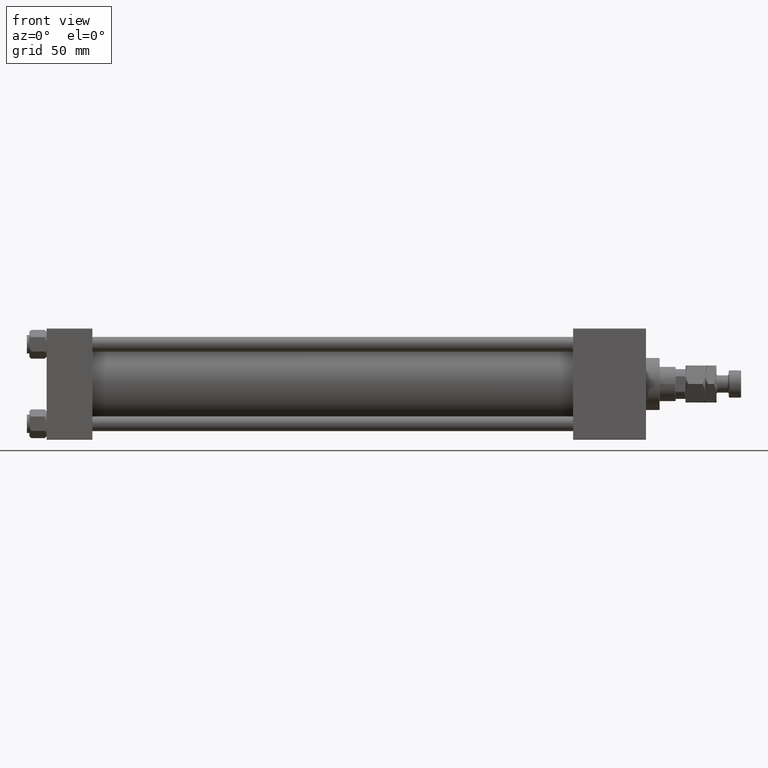
[diagram: clean part render]
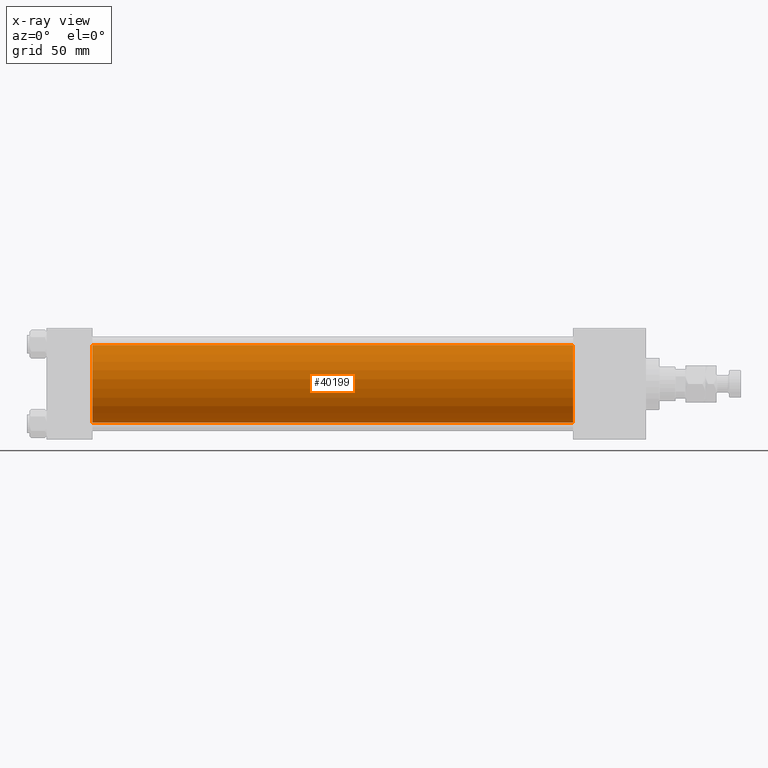
[diagram: x-ray — body ghosted, one internal face saturated and labeled with its STEP entity id]
A machine part, front view, then the same camera in x-ray: the body is ghosted and one INTERNAL B-rep face — a face not visible from any outside direction — is saturated and labeled: STEP entity #40199.
In plain terms, the highlighted cylindrical surface (partial cylindrical patch) has radius 31.5 mm, axis along (-1, -0, -0).
Its self-contained STEP definition (entity closure, byte-faithful):
#2226 = FACE_OUTER_BOUND ( 'NONE', #11155, .T. ) ;
#3051 = EDGE_CURVE ( 'NONE', #48441, #43650, #46889, .T. ) ;
#3244 = VECTOR ( 'NONE', #34979, 1000.000000000000000 ) ;
#4321 = EDGE_CURVE ( 'NONE', #36551, #48441, #27331, .T. ) ;
#7565 = AXIS2_PLACEMENT_3D ( 'NONE', #9440, #9936, #25482 ) ;
#9440 = CARTESIAN_POINT ( 'NONE',  ( 426.0000000000000000, -2.602085213965210642E-15, 0.000000000000000000 ) ) ;
#9936 = DIRECTION ( 'NONE',  ( 1.000000000000000000, 0.000000000000000000, 0.000000000000000000 ) ) ;
#11155 = EDGE_LOOP ( 'NONE', ( #29157, #21476, #44480, #21304 ) ) ;
#11608 = CARTESIAN_POINT ( 'NONE',  ( 426.0000000000000000, 1.255552203348951850E-15, -31.50000000000000000 ) ) ;
#12624 = VERTEX_POINT ( 'NONE', #11608 ) ;
#14304 = DIRECTION ( 'NONE',  ( -1.000000000000000000, -0.000000000000000000, -0.000000000000000000 ) ) ;
#14422 = CARTESIAN_POINT ( 'NONE',  ( 426.0000000000000000, -2.602085213965210642E-15, 31.50000000000000000 ) ) ;
#15074 = CARTESIAN_POINT ( 'NONE',  ( 426.0000000000000000, 1.255552203348951850E-15, -31.50000000000000000 ) ) ;
#15774 = AXIS2_PLACEMENT_3D ( 'NONE', #29274, #21619, #37688 ) ;
#21304 = ORIENTED_EDGE ( 'NONE', *, *, #4321, .F. ) ;
#21476 = ORIENTED_EDGE ( 'NONE', *, *, #45412, .T. ) ;
#21619 = DIRECTION ( 'NONE',  ( 1.000000000000000000, 0.000000000000000000, 0.000000000000000000 ) ) ;
#21961 = DIRECTION ( 'NONE',  ( 0.000000000000000000, 0.000000000000000000, 1.000000000000000000 ) ) ;
#23242 = LINE ( 'NONE', #15074, #46682 ) ;
#25482 = DIRECTION ( 'NONE',  ( 0.000000000000000000, 0.000000000000000000, -1.000000000000000000 ) ) ;
#26017 = CIRCLE ( 'NONE', #7565, 31.50000000000000000 ) ;
#26957 = CARTESIAN_POINT ( 'NONE',  ( 426.0000000000000000, -2.602085213965210642E-15, 0.000000000000000000 ) ) ;
#27331 = LINE ( 'NONE', #14422, #3244 ) ;
#28849 = EDGE_CURVE ( 'NONE', #36551, #12624, #26017, .T. ) ;
#29157 = ORIENTED_EDGE ( 'NONE', *, *, #28849, .T. ) ;
#29274 = CARTESIAN_POINT ( 'NONE',  ( 37.00000000000000000, -2.602085213965210642E-15, 0.000000000000000000 ) ) ;
#34979 = DIRECTION ( 'NONE',  ( -1.000000000000000000, -0.000000000000000000, -0.000000000000000000 ) ) ;
#35594 = AXIS2_PLACEMENT_3D ( 'NONE', #26957, #14304, #21961 ) ;
#36551 = VERTEX_POINT ( 'NONE', #43293 ) ;
#37688 = DIRECTION ( 'NONE',  ( 0.000000000000000000, 0.000000000000000000, -1.000000000000000000 ) ) ;
#40199 = ADVANCED_FACE ( 'NONE', ( #2226 ), #50913, .F. ) ;
#43293 = CARTESIAN_POINT ( 'NONE',  ( 426.0000000000000000, -2.602085213965210642E-15, 31.50000000000000000 ) ) ;
#43650 = VERTEX_POINT ( 'NONE', #46332 ) ;
#44480 = ORIENTED_EDGE ( 'NONE', *, *, #3051, .F. ) ;
#45412 = EDGE_CURVE ( 'NONE', #12624, #43650, #23242, .T. ) ;
#46332 = CARTESIAN_POINT ( 'NONE',  ( 37.00000000000000000, 1.255552203348951850E-15, -31.50000000000000000 ) ) ;
#46682 = VECTOR ( 'NONE', #51164, 1000.000000000000000 ) ;
#46889 = CIRCLE ( 'NONE', #15774, 31.50000000000000000 ) ;
#48441 = VERTEX_POINT ( 'NONE', #49842 ) ;
#49842 = CARTESIAN_POINT ( 'NONE',  ( 37.00000000000000000, -2.602085213965210642E-15, 31.50000000000000000 ) ) ;
#50913 = CYLINDRICAL_SURFACE ( 'NONE', #35594, 31.50000000000000000 ) ;
#51164 = DIRECTION ( 'NONE',  ( -1.000000000000000000, -0.000000000000000000, -0.000000000000000000 ) ) ;